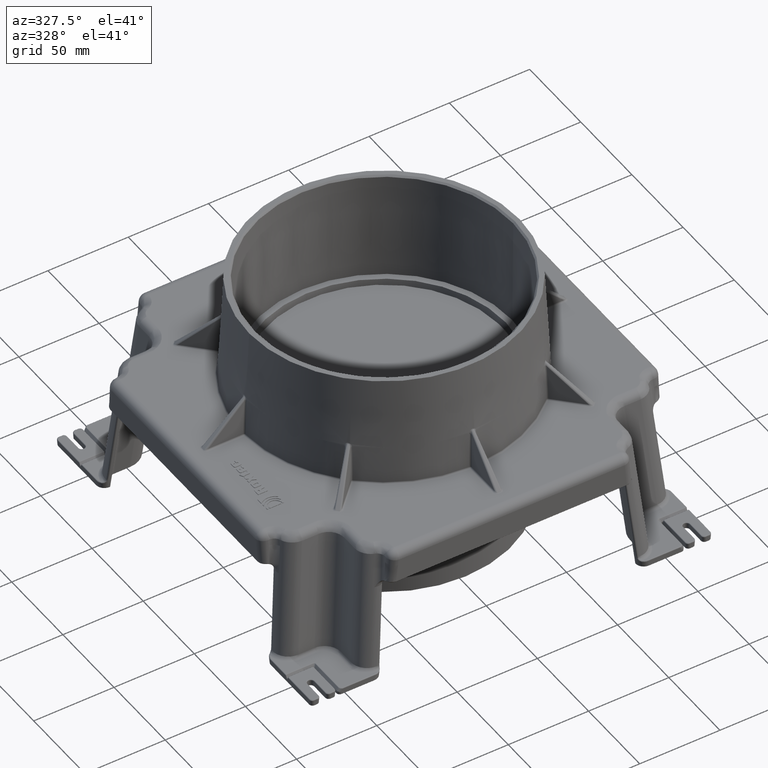
[diagram: clean part render]
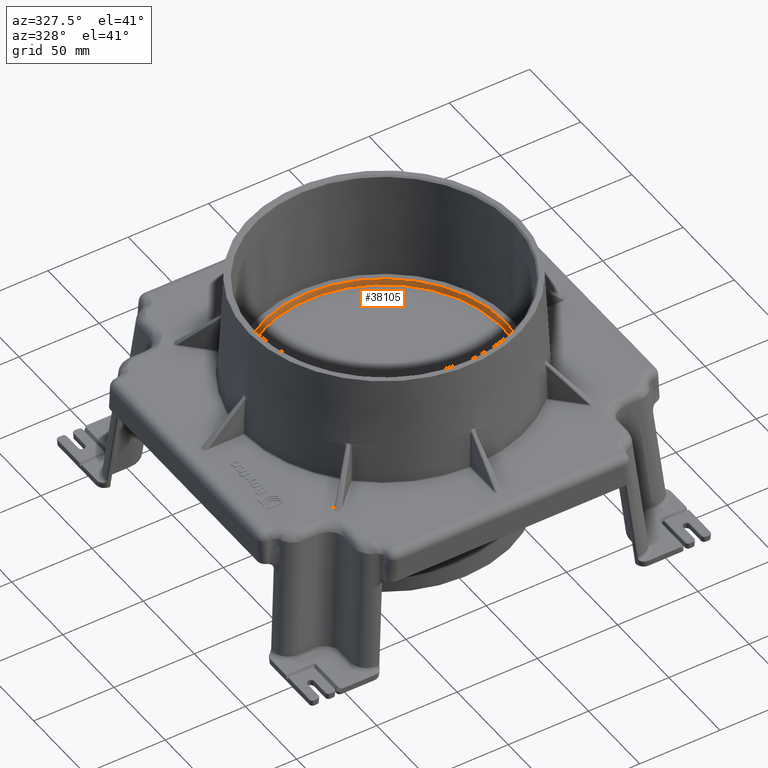
[diagram: same view with one face highlighted and labeled with its STEP entity id]
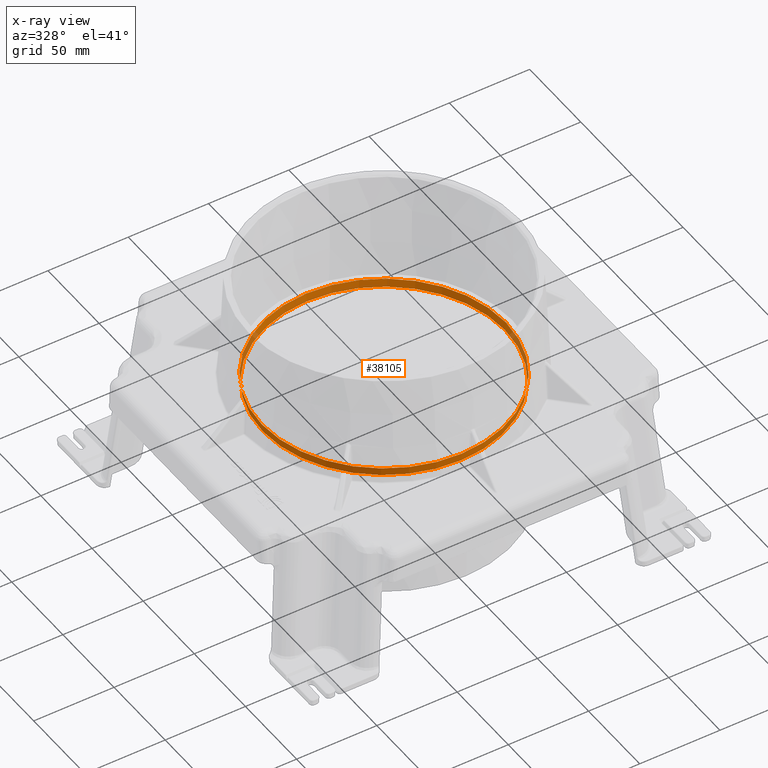
[diagram: x-ray of the same camera — body ghosted, the highlighted face saturated]
A machine part, auxiliary view. The second image highlights one B-rep face of the part: STEP entity #38105.
The next image is the same camera in x-ray: the body ghosted, the highlighted face saturated — about 8% of this face is hidden behind the body in this view.
In plain terms, the highlighted conical surface has half-angle 6 deg.
Its self-contained STEP definition (entity closure, byte-faithful):
#38046=CARTESIAN_POINT('',(-75.463691676566924,-1.900015E-014,-5.1026328489757));
#38047=VERTEX_POINT('',#38046);
#38048=CARTESIAN_POINT('',(0.0,0.0,-5.1026328489757));
#38049=DIRECTION('',(0.0,0.0,1.0));
#38050=DIRECTION('',(1.0,0.0,0.0));
#38051=AXIS2_PLACEMENT_3D('',#38048,#38049,#38050);
#38052=CIRCLE('',#38051,75.463691676566924);
#38053=EDGE_CURVE('',#38047,#38047,#38052,.F.);
#38086=CARTESIAN_POINT('',(0.0,0.0,0.0));
#38087=DIRECTION('',(0.0,0.0,1.0));
#38088=DIRECTION('',(1.0,0.0,0.0));
#38089=AXIS2_PLACEMENT_3D('',#38086,#38087,#38088);
#38090=CONICAL_SURFACE('',#38089,76.000000000000028,6.0);
#38091=CARTESIAN_POINT('',(-76.000000000000028,-5.205472E-016,0.0));
#38092=VERTEX_POINT('',#38091);
#38093=CARTESIAN_POINT('',(0.0,0.0,0.0));
#38094=DIRECTION('',(0.0,0.0,-1.0));
#38095=DIRECTION('',(1.0,0.0,0.0));
#38096=AXIS2_PLACEMENT_3D('',#38093,#38094,#38095);
#38097=CIRCLE('',#38096,76.000000000000028);
#38098=EDGE_CURVE('',#38092,#38092,#38097,.T.);
#38099=ORIENTED_EDGE('',*,*,#38098,.F.);
#38100=EDGE_LOOP('',(#38099));
#38101=FACE_OUTER_BOUND('',#38100,.T.);
#38102=ORIENTED_EDGE('',*,*,#38053,.T.);
#38103=EDGE_LOOP('',(#38102));
#38104=FACE_BOUND('',#38103,.T.);
#38105=ADVANCED_FACE('',(#38101,#38104),#38090,.F.);